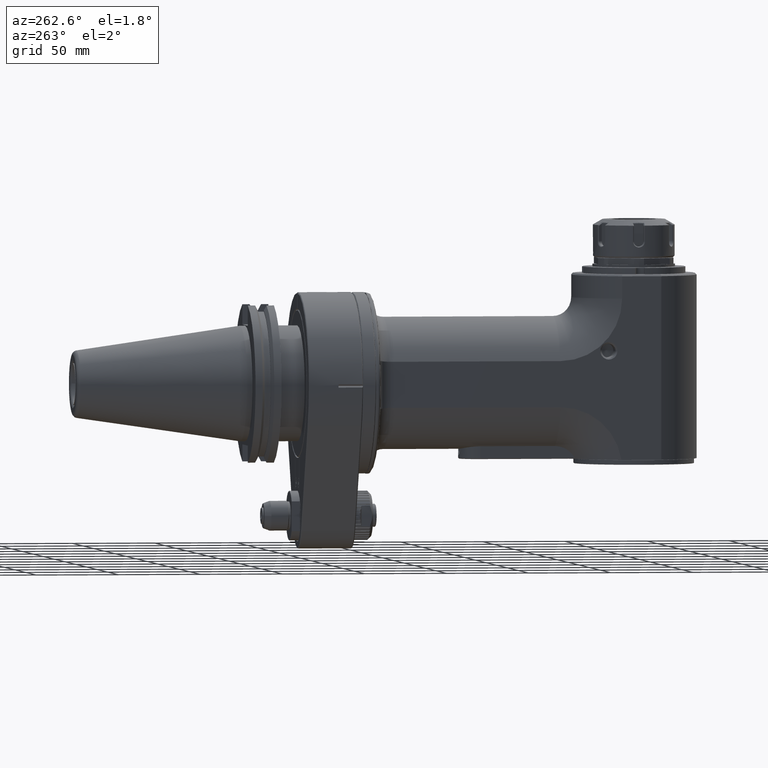
[diagram: clean part render]
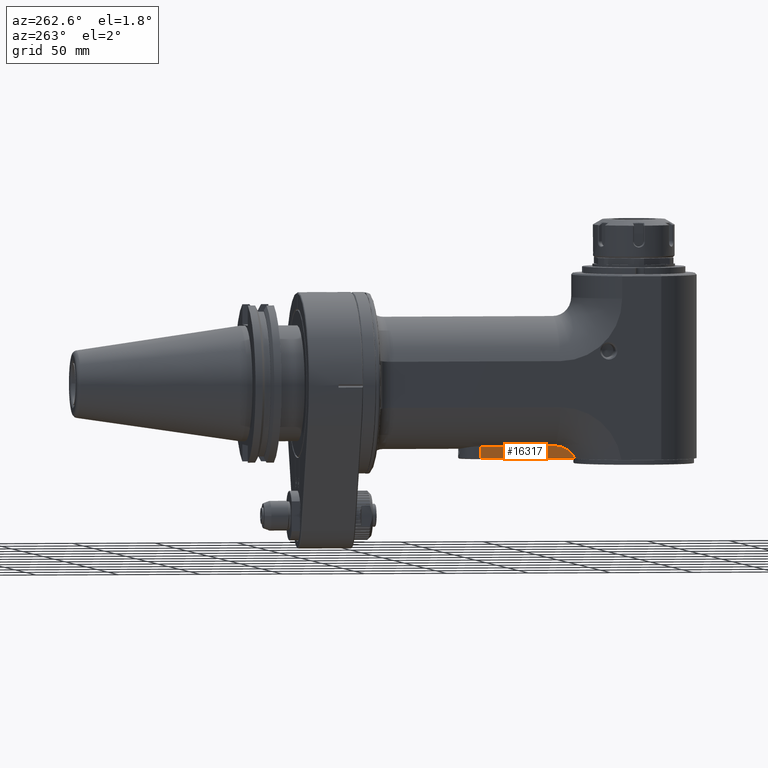
[diagram: same view with one face highlighted and labeled with its STEP entity id]
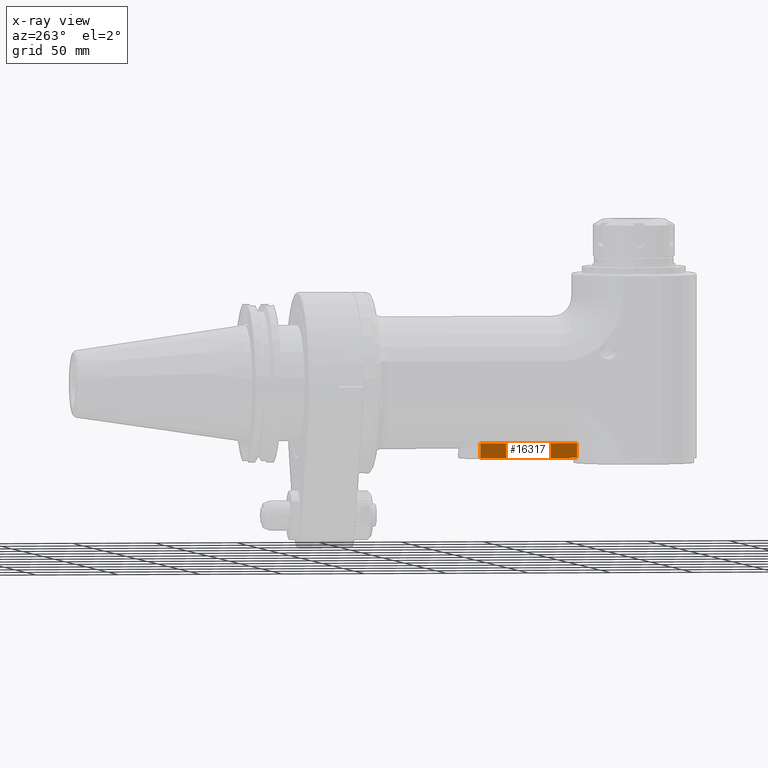
[diagram: x-ray of the same camera — body ghosted, the highlighted face saturated]
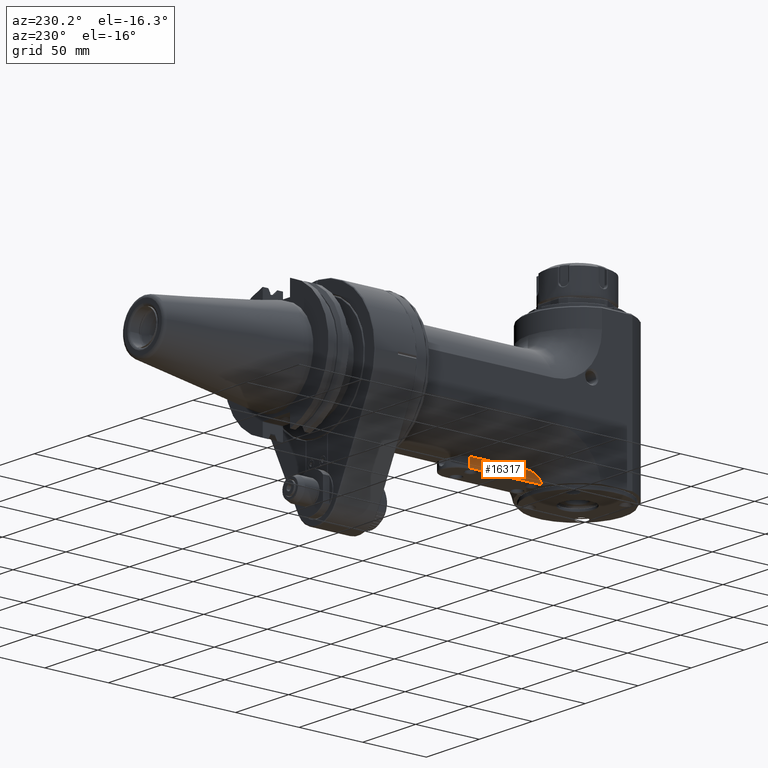
[diagram: same view with one face highlighted and labeled with its STEP entity id]
A machine part, auxiliary view. The second image highlights one B-rep face of the part: STEP entity #16317.
The next image is the same camera in x-ray: the body ghosted, the highlighted face saturated — about 0% of this face is hidden behind the body in this view.
A second angle (auxiliary view) of the same face is appended — the face is thin or edge-on in the first view.
In plain terms, the highlighted planar face has unit normal (-1, -0, 0).
Its self-contained STEP definition (entity closure, byte-faithful):
#2231=FACE_OUTER_BOUND('',#3220,.T.);
#3220=EDGE_LOOP('',(#13088,#13089,#13090,#13091));
#4479=LINE('',#27152,#5801);
#4486=LINE('',#27169,#5808);
#4487=LINE('',#27242,#5809);
#4488=LINE('',#27243,#5810);
#5801=VECTOR('',#21200,58.99999994721);
#5808=VECTOR('',#21219,8.949998393077);
#5809=VECTOR('',#21222,58.99999994721);
#5810=VECTOR('',#21223,8.949998393333);
#7253=VERTEX_POINT('',#27147);
#7254=VERTEX_POINT('',#27151);
#7258=VERTEX_POINT('',#27167);
#7261=VERTEX_POINT('',#27241);
#9316=EDGE_CURVE('',#7253,#7254,#4479,.T.);
#9325=EDGE_CURVE('',#7253,#7258,#4486,.T.);
#9328=EDGE_CURVE('',#7261,#7258,#4487,.T.);
#9329=EDGE_CURVE('',#7254,#7261,#4488,.T.);
#13088=ORIENTED_EDGE('',*,*,#9316,.F.);
#13089=ORIENTED_EDGE('',*,*,#9325,.T.);
#13090=ORIENTED_EDGE('',*,*,#9328,.F.);
#13091=ORIENTED_EDGE('',*,*,#9329,.F.);
#15630=PLANE('',#17788);
#16317=ADVANCED_FACE('',(#2231),#15630,.T.);
#17788=AXIS2_PLACEMENT_3D('',#27240,#21220,#21221);
#21200=DIRECTION('',(2.162127352915E-12,-1.,2.162097245172E-12));
#21219=DIRECTION('',(1.60963760381E-13,0.,-1.));
#21220=DIRECTION('center_axis',(-1.,0.,0.));
#21221=DIRECTION('ref_axis',(0.,1.,0.));
#21222=DIRECTION('',(-2.162518753575E-12,1.,2.1619768142E-12));
#21223=DIRECTION('',(1.637424196184E-13,0.,-1.));
#27147=CARTESIAN_POINT('',(-11.8999999591251,94.99999997551,-36.5000031158315));
#27151=CARTESIAN_POINT('',(-11.8999999591224,36.0000000283,-36.5000031158249));
#27152=CARTESIAN_POINT('',(-11.89999919621,94.99999997551,-36.50000080346));
#27167=CARTESIAN_POINT('',(-11.899999959125,94.99999997551,-45.4499968841637));
#27169=CARTESIAN_POINT('',(-11.89999919621,94.99999997551,-36.50000080346));
#27240=CARTESIAN_POINT('Origin',(-11.9,36.,-36.));
#27241=CARTESIAN_POINT('',(-11.9000000478829,36.,-45.4499966698829));
#27242=CARTESIAN_POINT('',(-11.89999919608,36.0000000283,-45.44999919667));
#27243=CARTESIAN_POINT('',(-11.89999919608,36.0000000283,-36.50000080333));